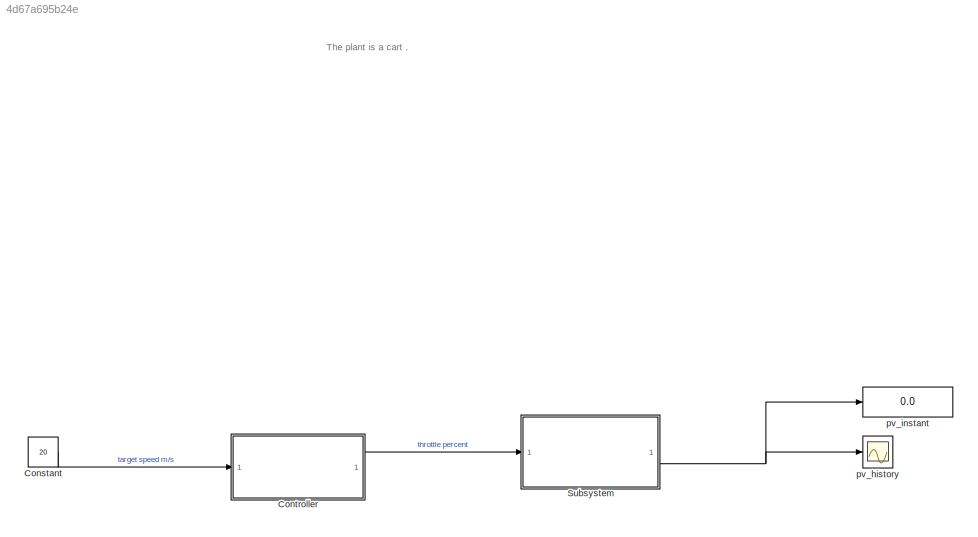
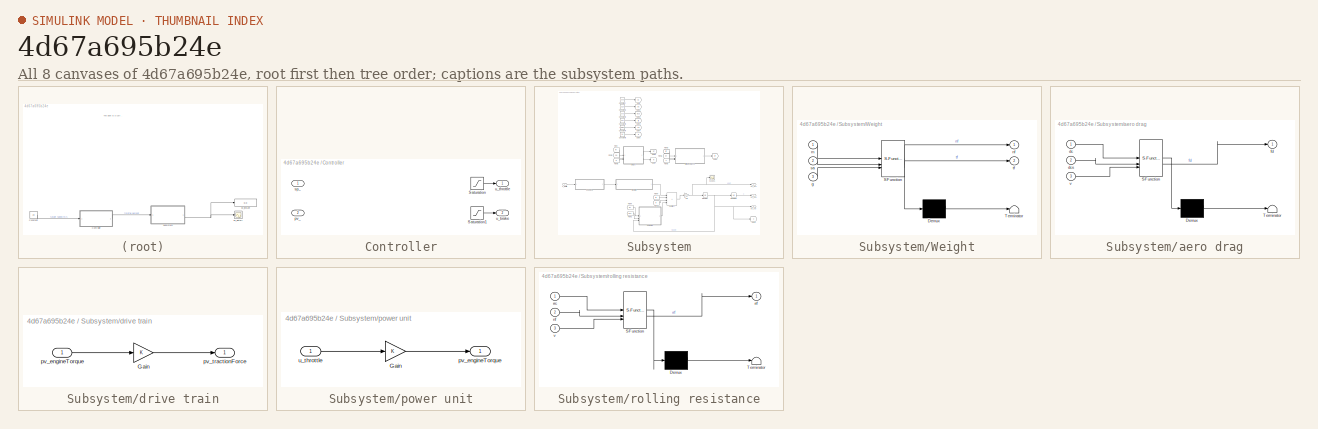
[diagram: thumbnail index - all 8 canvases of the model, root first then tree order]
MODEL slx_4d67a695b24e
KIND model
CONFIG AbsTol = auto
CONFIG EnableMultiTasking = off
CONFIG FixedStep = 1e-2
CONFIG MaxStep = auto
CONFIG MinStep = auto
CONFIG RelTol = 1e-3
CONFIG SampleTimeConstraint = Unconstrained
CONFIG SolverName = ode4
CONFIG StartTime = 0.0
CONFIG StopTime = 600
BLOCK [Constant] Constant
  Value = 20
BLOCK [SubSystem] Controller
BLOCK [Saturate] Controller/Saturation
  LowerLimit = 0
  UpperLimit = 1
BLOCK [Saturate] Controller/Saturation1
  LowerLimit = 0
  UpperLimit = 1
BLOCK [Inport] Controller/pv_
  Port = 2
BLOCK [Inport] Controller/sp_
BLOCK [Outport] Controller/u_brake
  Port = 2
BLOCK [Outport] Controller/u_throttle
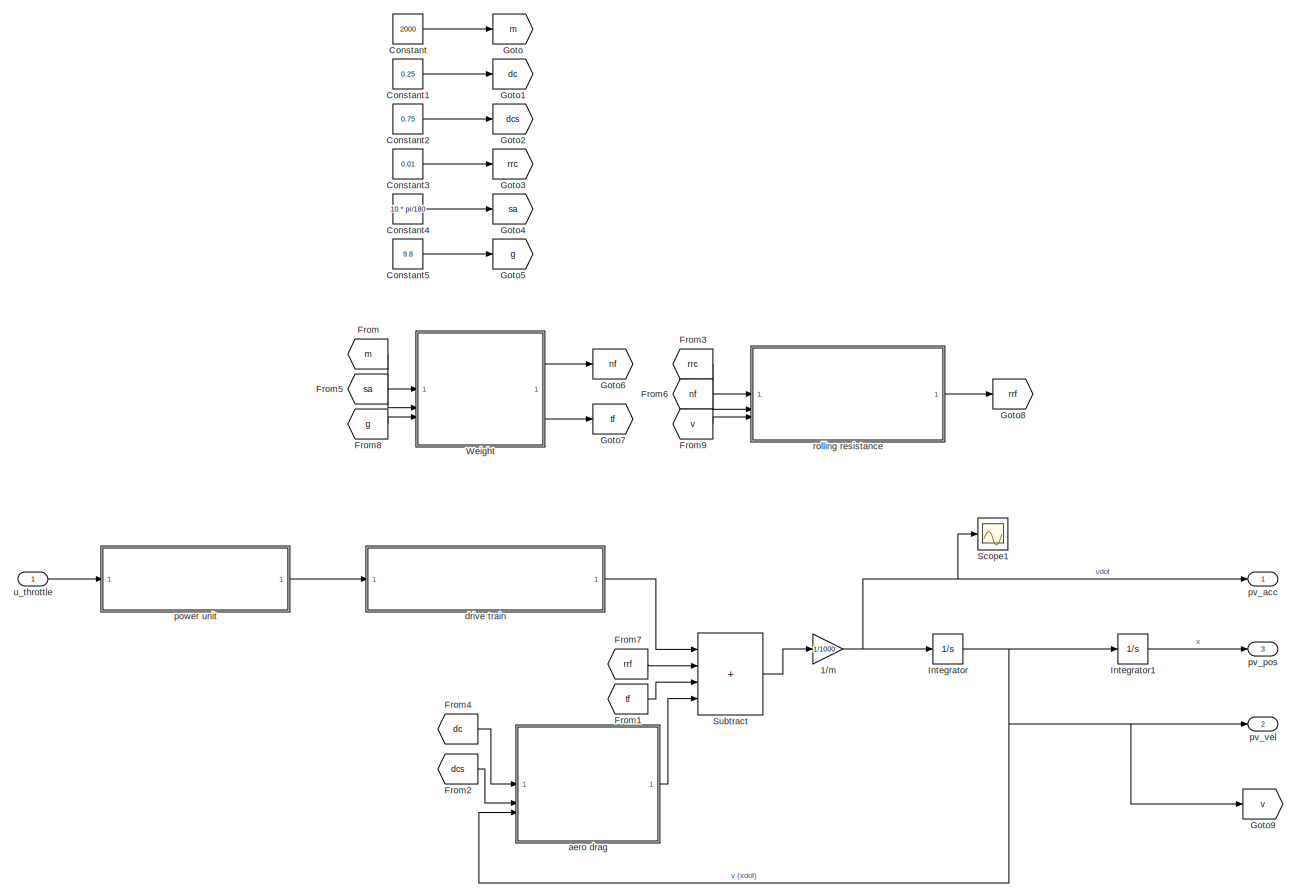
[diagram: Subsystem - part 1/1, most of the canvas]
BLOCK [SubSystem] Subsystem
BLOCK [Gain] Subsystem/1//m
  Gain = 1/1000
BLOCK [Constant] Subsystem/Constant
  Value = 2000
BLOCK [Constant] Subsystem/Constant1
  Value = 0.25
BLOCK [Constant] Subsystem/Constant2
  Value = 0.75
BLOCK [Constant] Subsystem/Constant3
  Value = 0.01
BLOCK [Constant] Subsystem/Constant4
  Value = 10 * pi/180
BLOCK [Constant] Subsystem/Constant5
  Value = 9.8
BLOCK [From] Subsystem/From
  GotoTag = m
BLOCK [From] Subsystem/From1
  GotoTag = tf
BLOCK [From] Subsystem/From2
  GotoTag = dcs
BLOCK [From] Subsystem/From3
  GotoTag = rrc
BLOCK [From] Subsystem/From4
  GotoTag = dc
BLOCK [From] Subsystem/From5
  GotoTag = sa
BLOCK [From] Subsystem/From6
  GotoTag = nf
BLOCK [From] Subsystem/From7
  GotoTag = rrf
BLOCK [From] Subsystem/From8
  GotoTag = g
BLOCK [From] Subsystem/From9
  GotoTag = v
BLOCK [Goto] Subsystem/Goto
  GotoTag = m
BLOCK [Goto] Subsystem/Goto1
  GotoTag = dc
BLOCK [Goto] Subsystem/Goto2
  GotoTag = dcs
BLOCK [Goto] Subsystem/Goto3
  GotoTag = rrc
BLOCK [Goto] Subsystem/Goto4
  GotoTag = sa
  NameLocation = right
BLOCK [Goto] Subsystem/Goto5
  GotoTag = g
BLOCK [Goto] Subsystem/Goto6
  GotoTag = nf
BLOCK [Goto] Subsystem/Goto7
  GotoTag = tf
BLOCK [Goto] Subsystem/Goto8
  GotoTag = rrf
BLOCK [Goto] Subsystem/Goto9
  GotoTag = v
BLOCK [Integrator] Subsystem/Integrator
BLOCK [Integrator] Subsystem/Integrator1
BLOCK [Scope] Subsystem/Scope1
  Floating = off
  NumInputPorts = 1
  ScopeSpecificationString = Simulink.scopes.TimeScopeBlockCfg('CurrentConfiguration', extmgr.ConfigurationSet(extmgr.Configuration('Core','General UI',true),extmgr.Configuration('Core','Source UI',true),extmgr.Configuration('Sources','WiredSimulink',true,'DataLoggingVariableName','ScopeData1'),extmgr.Configuration('Visuals','Time Domain',true,'SerializedDisplays',{struct('MinYLimReal','-0.01645','MaxYLimReal','0.27571','YLab...<+1363ch>
BLOCK [Sum] Subsystem/Subtract
  IconShape = rectangular
  Inputs = ++++
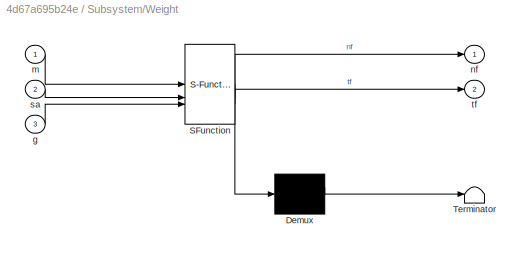
BLOCK [SubSystem] Subsystem/Weight
  ErrorFcn = Stateflow.Translate.translate
  PermitHierarchicalResolution = ExplicitOnly
  SFBlockType = MATLAB Function
  TreatAsAtomicUnit = on
BLOCK [Demux] Subsystem/Weight/ Demux 
  Outputs = 1
BLOCK [S-Function] Subsystem/Weight/ SFunction 
  EnableBusSupport = on
  FunctionName = sf_sfun
  PortCounts = [3 3]
  SFcnIsStateOwnerBlock = off
  SFunctionDeploymentMode = off
  Tag = Stateflow S-Function 3
BLOCK [Terminator] Subsystem/Weight/ Terminator 
BLOCK [Inport] Subsystem/Weight/g
  Port = 3
BLOCK [Inport] Subsystem/Weight/m
BLOCK [Outport] Subsystem/Weight/nf
BLOCK [Inport] Subsystem/Weight/sa
  Port = 2
BLOCK [Outport] Subsystem/Weight/tf
  Port = 2
BLOCK [SubSystem] Subsystem/aero drag
  ErrorFcn = Stateflow.Translate.translate
  PermitHierarchicalResolution = ExplicitOnly
  SFBlockType = MATLAB Function
  TreatAsAtomicUnit = on
BLOCK [Demux] Subsystem/aero drag/ Demux 
  Outputs = 1
BLOCK [S-Function] Subsystem/aero drag/ SFunction 
  EnableBusSupport = on
  FunctionName = sf_sfun
  PortCounts = [3 2]
  SFcnIsStateOwnerBlock = off
  SFunctionDeploymentMode = off
  Tag = Stateflow S-Function 2
BLOCK [Terminator] Subsystem/aero drag/ Terminator 
BLOCK [Inport] Subsystem/aero drag/dc
BLOCK [Inport] Subsystem/aero drag/dcs
  Port = 2
BLOCK [Outport] Subsystem/aero drag/fd
BLOCK [Inport] Subsystem/aero drag/v
  Port = 3
BLOCK [SubSystem] Subsystem/drive train
BLOCK [Gain] Subsystem/drive train/Gain
BLOCK [Inport] Subsystem/drive train/pv_engineTorque
BLOCK [Outport] Subsystem/drive train/pv_tractionForce
BLOCK [SubSystem] Subsystem/power unit
BLOCK [Gain] Subsystem/power unit/Gain
BLOCK [Outport] Subsystem/power unit/pv_engineTorque
BLOCK [Inport] Subsystem/power unit/u_throttle
BLOCK [Outport] Subsystem/pv_acc
  NameLocation = right
BLOCK [Outport] Subsystem/pv_pos
  NameLocation = right
  Port = 3
BLOCK [Outport] Subsystem/pv_vel
  NameLocation = right
  Port = 2
BLOCK [SubSystem] Subsystem/rolling resistance
  ErrorFcn = Stateflow.Translate.translate
  PermitHierarchicalResolution = ExplicitOnly
  SFBlockType = MATLAB Function
  TreatAsAtomicUnit = on
BLOCK [Demux] Subsystem/rolling resistance/ Demux 
  Outputs = 1
BLOCK [S-Function] Subsystem/rolling resistance/ SFunction 
  EnableBusSupport = on
  FunctionName = sf_sfun
  PortCounts = [3 2]
  SFcnIsStateOwnerBlock = off
  SFunctionDeploymentMode = off
  Tag = Stateflow S-Function 1
BLOCK [Terminator] Subsystem/rolling resistance/ Terminator 
BLOCK [Inport] Subsystem/rolling resistance/nf
  Port = 2
BLOCK [Inport] Subsystem/rolling resistance/rrc
BLOCK [Outport] Subsystem/rolling resistance/rrf
BLOCK [Inport] Subsystem/rolling resistance/v
  Port = 3
BLOCK [Inport] Subsystem/u_throttle
BLOCK [Scope] pv_history
  Floating = off
  NameLocation = right
  NumInputPorts = 1
  ScopeSpecificationString = Simulink.scopes.TimeScopeBlockCfg('CurrentConfiguration', extmgr.ConfigurationSet(extmgr.Configuration('Core','General UI',true),extmgr.Configuration('Core','Source UI',true),extmgr.Configuration('Sources','WiredSimulink',true),extmgr.Configuration('Visuals','Time Domain',true,'SerializedDisplays',{struct('MinYLimReal','-4.95198','MaxYLimReal','44.56783','YLabelReal','','MinYLimMag','0.00000','Max...<+1410ch>
BLOCK [Display] pv_instant
  Decimation = 1
  NameLocation = right
ANNOTATION (root): The plant is a cart . Your goal is to make the cart, cruise at setpoint velocity. You are not allowed to make any modifications outside the controller. You are not allowed to modify the i/o ports. Feedback is disabled on purpose. You are encouraged to identify the plant dynamics by experimenting. Inspect the output against various inputs. You are also encouraged to look inside the plant block when...<+33ch>
LINE Constant:1 -> Controller:1
LINE Controller/Saturation1:1 -> Controller/u_brake:1
LINE Controller/Saturation:1 -> Controller/u_throttle:1
LINE Controller:1 -> Subsystem:1
NET Subsystem/1//m:1 -> Subsystem/Integrator:1, Subsystem/Scope1:1, Subsystem/pv_acc:1
LINE Subsystem/Constant1:1 -> Subsystem/Goto1:1
LINE Subsystem/Constant2:1 -> Subsystem/Goto2:1
LINE Subsystem/Constant3:1 -> Subsystem/Goto3:1
LINE Subsystem/Constant4:1 -> Subsystem/Goto4:1
LINE Subsystem/Constant5:1 -> Subsystem/Goto5:1
LINE Subsystem/Constant:1 -> Subsystem/Goto:1
LINE Subsystem/From1:1 -> Subsystem/Subtract:3
LINE Subsystem/From2:1 -> Subsystem/aero drag:2
LINE Subsystem/From3:1 -> Subsystem/rolling resistance:1
LINE Subsystem/From4:1 -> Subsystem/aero drag:1
LINE Subsystem/From5:1 -> Subsystem/Weight:2
LINE Subsystem/From6:1 -> Subsystem/rolling resistance:2
LINE Subsystem/From7:1 -> Subsystem/Subtract:2
LINE Subsystem/From8:1 -> Subsystem/Weight:3
LINE Subsystem/From9:1 -> Subsystem/rolling resistance:3
LINE Subsystem/From:1 -> Subsystem/Weight:1
LINE Subsystem/Integrator1:1 -> Subsystem/pv_pos:1
NET Subsystem/Integrator:1 -> Subsystem/Goto9:1, Subsystem/Integrator1:1, Subsystem/aero drag:3, Subsystem/pv_vel:1
LINE Subsystem/Subtract:1 -> Subsystem/1//m:1
LINE Subsystem/Weight:1 -> Subsystem/Goto6:1
LINE Subsystem/Weight:2 -> Subsystem/Goto7:1
LINE Subsystem/aero drag:1 -> Subsystem/Subtract:4
LINE Subsystem/drive train/Gain:1 -> Subsystem/drive train/pv_tractionForce:1
LINE Subsystem/drive train/pv_engineTorque:1 -> Subsystem/drive train/Gain:1
LINE Subsystem/drive train:1 -> Subsystem/Subtract:1
LINE Subsystem/power unit/Gain:1 -> Subsystem/power unit/pv_engineTorque:1
LINE Subsystem/power unit/u_throttle:1 -> Subsystem/power unit/Gain:1
LINE Subsystem/power unit:1 -> Subsystem/drive train:1
LINE Subsystem/rolling resistance:1 -> Subsystem/Goto8:1
LINE Subsystem/u_throttle:1 -> Subsystem/power unit:1
NET Subsystem:2 -> pv_history:1, pv_instant:1
note: NET lines group one-source signal fan-out (src -> all destinations, sorted); 1:1 wires keep LINE
CHART Subsystem/rolling resistance states=1 transitions=1
  STATE_LABEL 'eML_blk_kernel()'
  STATE_LABEL 'SCRIPT:\nfunction rrf = rollingResistance(rrc, nf, v)\ntol = 1e-3;\nif abs(v) > tol\n    rrf = rrc * nf * (-1 * sign(v));\nelse\n    rrf = 0;\nend\n'
CHART Subsystem/aero drag states=1 transitions=1
  STATE_LABEL 'eML_blk_kernel()'
  STATE_LABEL 'SCRIPT:\nfunction fd = aeroDrag(dc, dcs, v)\nfd = 0.5 * dc * dcs * v ^ 2 * (-1 * sign(v));\n'
CHART Subsystem/Weight states=1 transitions=1
  STATE_LABEL 'eML_blk_kernel()'
  STATE_LABEL 'SCRIPT:\nfunction [nf, tf] = fcn(m, sa, g)\nnf = m * g * cos(sa);\ntf = -1 * m * g * sin(sa);\n'
CHART  states=0 transitions=0
CHART  states=0 transitions=0
CHART  states=0 transitions=0
